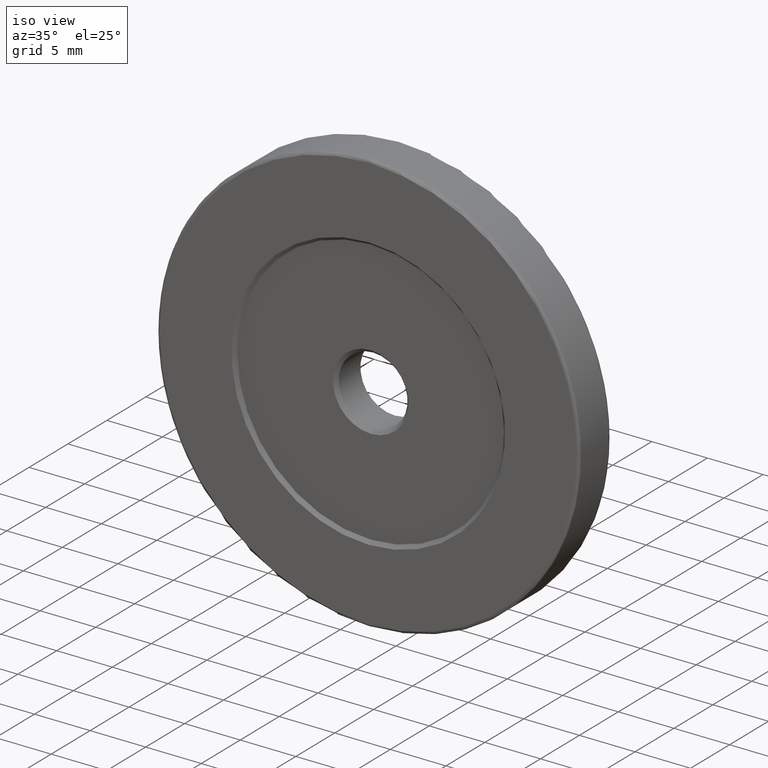
[diagram: clean part render]
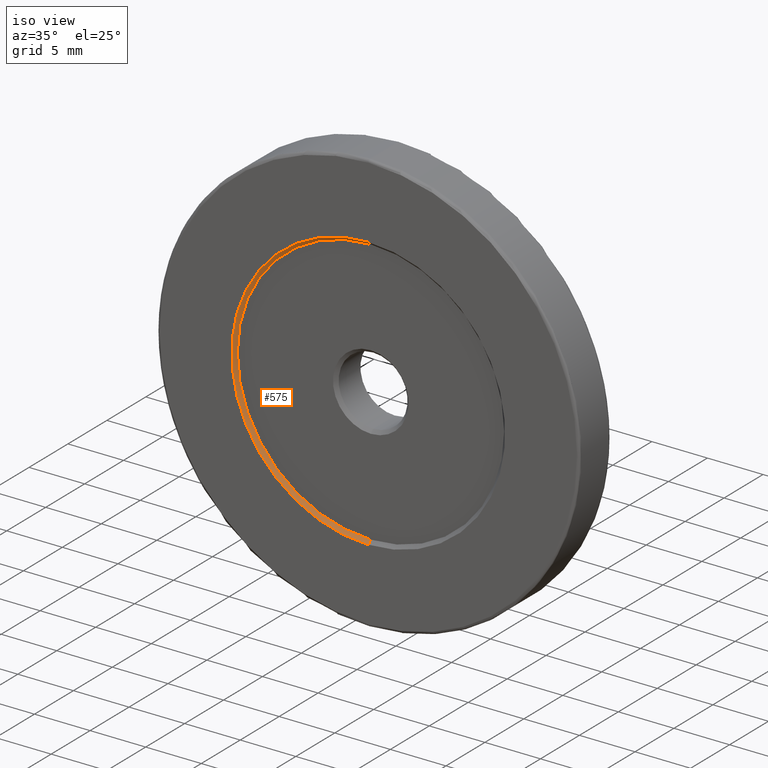
[diagram: same view with one face highlighted and labeled with its STEP entity id]
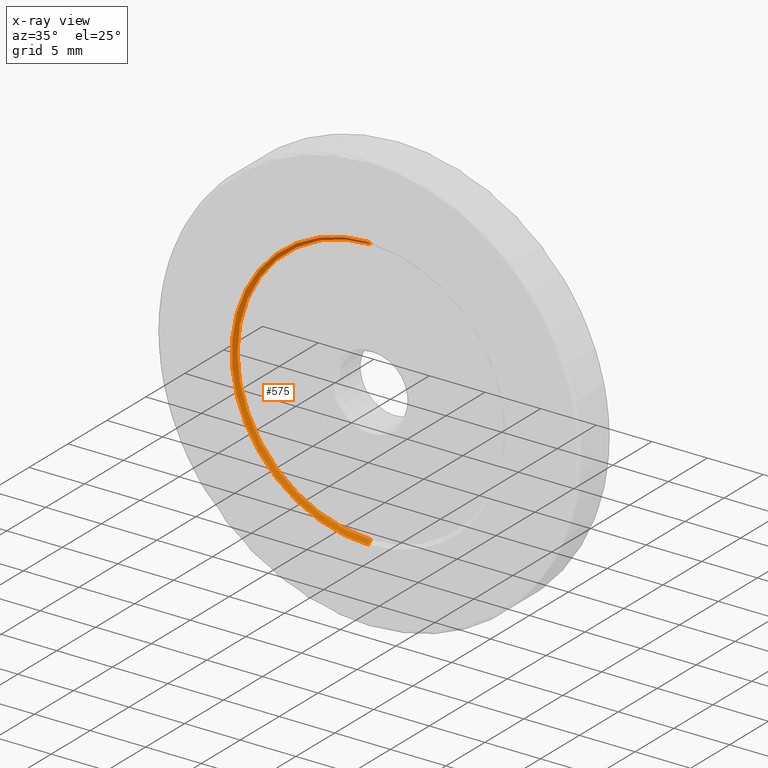
[diagram: x-ray of the same camera — body ghosted, the highlighted face saturated]
A machine part, iso view. The second image highlights one B-rep face of the part: STEP entity #575.
The next image is the same camera in x-ray: the body ghosted, the highlighted face saturated — about 0% of this face is hidden behind the body in this view.
In plain terms, the highlighted conical surface has half-angle 45 deg.
Its self-contained STEP definition (entity closure, byte-faithful):
#1 = EDGE_CURVE ( 'NONE', #395, #132, #88, .T. ) ;
#22 = CIRCLE ( 'NONE', #362, 12.30000000000001315 ) ;
#36 = CONICAL_SURFACE ( 'NONE', #45, 12.30000000000001315, 0.7853981633974396193 ) ;
#37 = VECTOR ( 'NONE', #271, 1000.000000000000000 ) ;
#42 = DIRECTION ( 'NONE',  ( 0.000000000000000000, 0.000000000000000000, 1.000000000000000000 ) ) ;
#45 = AXIS2_PLACEMENT_3D ( 'NONE', #544, #238, #305 ) ;
#88 = CIRCLE ( 'NONE', #529, 12.00000000000000355 ) ;
#94 = CARTESIAN_POINT ( 'NONE',  ( -7.546808913101046734, -4.893595127302727832, 50.30000000000001137 ) ) ;
#100 = FACE_OUTER_BOUND ( 'NONE', #174, .T. ) ;
#132 = VERTEX_POINT ( 'NONE', #483 ) ;
#140 = CARTESIAN_POINT ( 'NONE',  ( -7.546808913101048510, -4.593595127302728010, 38.00000000000000000 ) ) ;
#141 = DIRECTION ( 'NONE',  ( 0.000000000000000000, 1.000000000000000000, 0.000000000000000000 ) ) ;
#154 = EDGE_CURVE ( 'NONE', #132, #320, #168, .T. ) ;
#168 = LINE ( 'NONE', #586, #37 ) ;
#174 = EDGE_LOOP ( 'NONE', ( #252, #402, #408, #492 ) ) ;
#198 = EDGE_CURVE ( 'NONE', #395, #250, #307, .T. ) ;
#216 = CARTESIAN_POINT ( 'NONE',  ( -7.546808913101048510, -4.893595127302727832, 25.69999999999998508 ) ) ;
#238 = DIRECTION ( 'NONE',  ( -0.000000000000000000, -1.000000000000000000, -0.000000000000000000 ) ) ;
#250 = VERTEX_POINT ( 'NONE', #274 ) ;
#252 = ORIENTED_EDGE ( 'NONE', *, *, #1, .T. ) ;
#271 = DIRECTION ( 'NONE',  ( 8.659560562354860135E-17, -0.7071067811865536790, 0.7071067811865414665 ) ) ;
#274 = CARTESIAN_POINT ( 'NONE',  ( -7.546808913101048510, -4.893595127302727832, 25.69999999999998508 ) ) ;
#289 = VECTOR ( 'NONE', #599, 1000.000000000000000 ) ;
#305 = DIRECTION ( 'NONE',  ( 0.000000000000000000, 0.000000000000000000, -1.000000000000000000 ) ) ;
#307 = LINE ( 'NONE', #216, #289 ) ;
#320 = VERTEX_POINT ( 'NONE', #94 ) ;
#330 = DIRECTION ( 'NONE',  ( 0.000000000000000000, 0.000000000000000000, 1.000000000000000000 ) ) ;
#362 = AXIS2_PLACEMENT_3D ( 'NONE', #613, #141, #330 ) ;
#382 = DIRECTION ( 'NONE',  ( -0.000000000000000000, 1.000000000000000000, -0.000000000000000000 ) ) ;
#395 = VERTEX_POINT ( 'NONE', #423 ) ;
#402 = ORIENTED_EDGE ( 'NONE', *, *, #154, .T. ) ;
#408 = ORIENTED_EDGE ( 'NONE', *, *, #432, .F. ) ;
#423 = CARTESIAN_POINT ( 'NONE',  ( -7.546808913101048510, -4.593595127302728010, 25.99999999999999645 ) ) ;
#432 = EDGE_CURVE ( 'NONE', #250, #320, #22, .T. ) ;
#483 = CARTESIAN_POINT ( 'NONE',  ( -7.546808913101046734, -4.593595127302728010, 50.00000000000000000 ) ) ;
#492 = ORIENTED_EDGE ( 'NONE', *, *, #198, .F. ) ;
#529 = AXIS2_PLACEMENT_3D ( 'NONE', #140, #382, #42 ) ;
#544 = CARTESIAN_POINT ( 'NONE',  ( -7.546808913101048510, -4.893595127302727832, 38.00000000000000000 ) ) ;
#575 = ADVANCED_FACE ( 'NONE', ( #100 ), #36, .F. ) ;
#586 = CARTESIAN_POINT ( 'NONE',  ( -7.546808913101046734, -4.893595127302727832, 50.30000000000001137 ) ) ;
#599 = DIRECTION ( 'NONE',  ( 0.000000000000000000, -0.7071067811865536790, -0.7071067811865414665 ) ) ;
#613 = CARTESIAN_POINT ( 'NONE',  ( -7.546808913101048510, -4.893595127302727832, 38.00000000000000000 ) ) ;